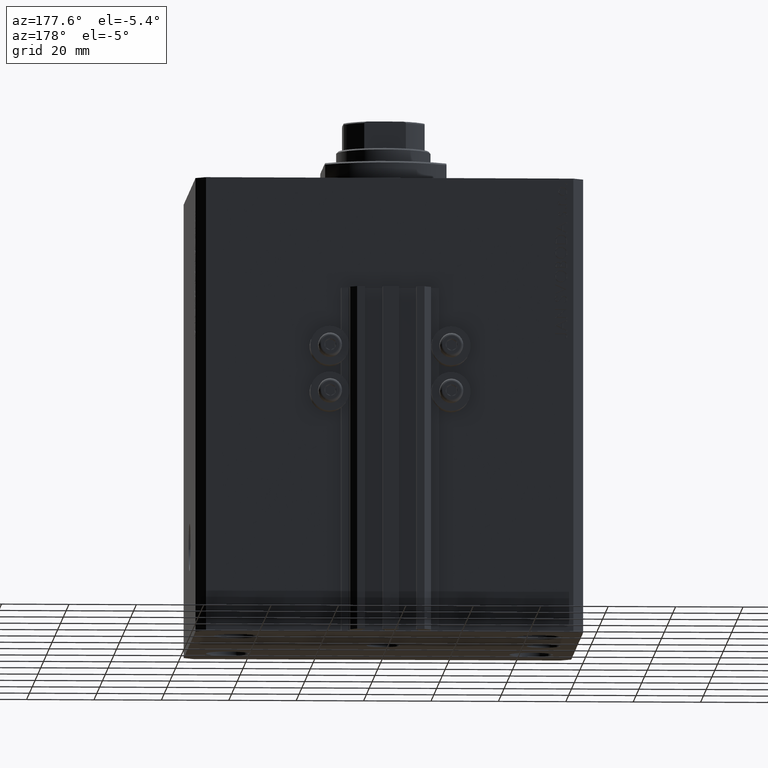
[diagram: clean part render]
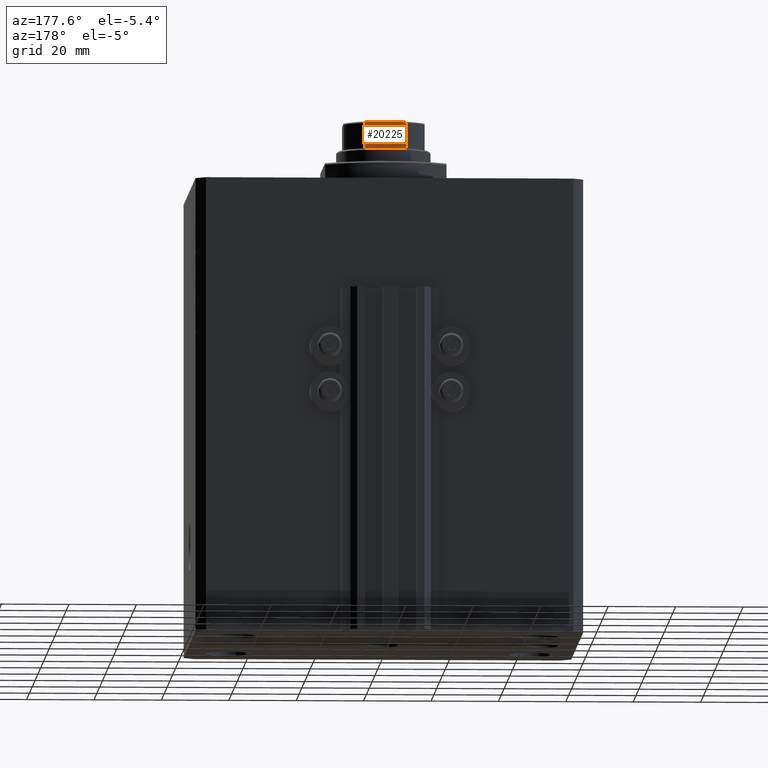
[diagram: same view with one face highlighted and labeled with its STEP entity id]
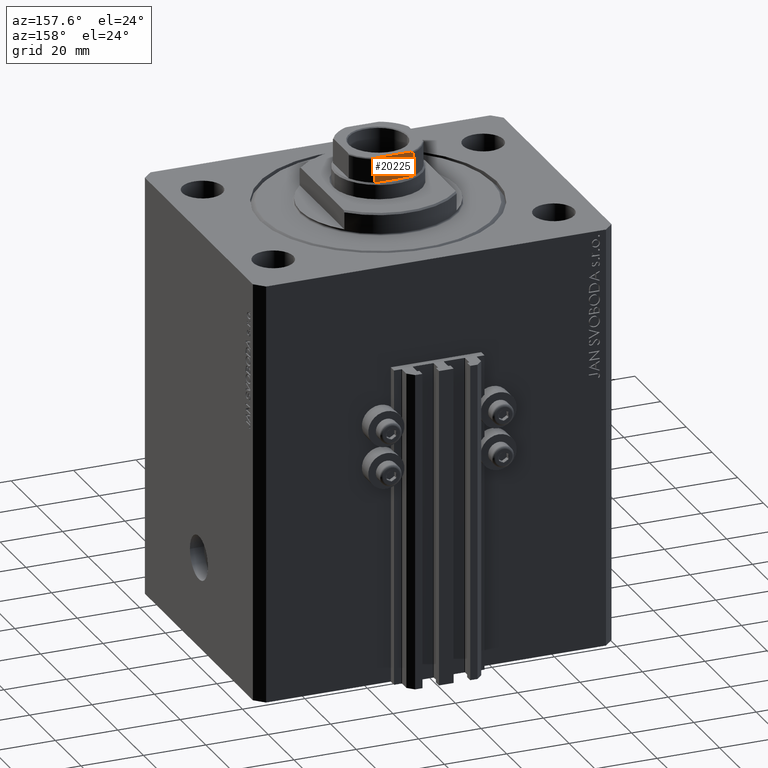
[diagram: same view with one face highlighted and labeled with its STEP entity id]
A machine part, auxiliary view. The second image highlights one B-rep face of the part: STEP entity #20225.
A second angle (auxiliary view) of the same face is appended — the face is thin or edge-on in the first view.
In plain terms, the highlighted planar face has unit normal (0, -1, 0).
Its self-contained STEP definition (entity closure, byte-faithful):
#2857 = DIRECTION ( 'NONE',  ( -1.000000000000000000, -7.228014483236695816E-17, -0.000000000000000000 ) ) ;
#3470 = EDGE_CURVE ( 'NONE', #31423, #36230, #40232, .T. ) ;
#3572 = DIRECTION ( 'NONE',  ( -1.000000000000000000, -7.228014483236695816E-17, -0.000000000000000000 ) ) ;
#3825 = CARTESIAN_POINT ( 'NONE',  ( 6.091027642353958882, 12.00000000000000178, 136.7080088155617261 ) ) ;
#4317 = CARTESIAN_POINT ( 'NONE',  ( 5.230809753656822991, 12.00000000000000000, 137.0000000000000000 ) ) ;
#4701 = VECTOR ( 'NONE', #32716, 1000.000000000000000 ) ;
#5080 = CARTESIAN_POINT ( 'NONE',  ( -6.184658438426494875, 12.00000000000000000, 129.0000000000000000 ) ) ;
#5624 = CARTESIAN_POINT ( 'NONE',  ( -5.230795946637844196, 11.99999999999999467, 136.9999999999999716 ) ) ;
#5988 = CARTESIAN_POINT ( 'NONE',  ( -11.99999999999999822, 11.99999999999999822, 137.0000000000000000 ) ) ;
#7090 = VERTEX_POINT ( 'NONE', #9625 ) ;
#7188 = CARTESIAN_POINT ( 'NONE',  ( -11.99999999999999822, 11.99999999999999822, 129.0000000000000000 ) ) ;
#7437 = EDGE_CURVE ( 'NONE', #21266, #37041, #25527, .T. ) ;
#7542 = DIRECTION ( 'NONE',  ( -0.000000000000000000, -0.000000000000000000, 1.000000000000000000 ) ) ;
#7784 = LINE ( 'NONE', #12076, #41423 ) ;
#9625 = CARTESIAN_POINT ( 'NONE',  ( 6.184658438426492211, 12.00000000000000178, 129.0000000000000000 ) ) ;
#9968 = ORIENTED_EDGE ( 'NONE', *, *, #11707, .F. ) ;
#11160 = VECTOR ( 'NONE', #2857, 1000.000000000000000 ) ;
#11188 = CARTESIAN_POINT ( 'NONE',  ( -6.184658438426490434, 12.00000000000000000, -0.001000000000001000089 ) ) ;
#11257 = LINE ( 'NONE', #7188, #34576 ) ;
#11505 = CARTESIAN_POINT ( 'NONE',  ( 5.459934723612540175, 12.00000000000000000, 136.9794964115812377 ) ) ;
#11707 = EDGE_CURVE ( 'NONE', #7090, #36230, #7784, .T. ) ;
#12076 = CARTESIAN_POINT ( 'NONE',  ( 6.184658438426490434, 11.99999999999999822, -0.001000000000001000089 ) ) ;
#14228 = CARTESIAN_POINT ( 'NONE',  ( 5.000000000000002665, 12.00000000000000000, 137.0000000000000000 ) ) ;
#15105 = B_SPLINE_CURVE_WITH_KNOTS ( 'NONE', 3,
 ( #26913, #38416, #20235, #16421, #35044, #27384, #41995, #16658, #5624, #31224 ),
 .UNSPECIFIED., .F., .F.,
 ( 4, 2, 2, 2, 4 ),
 ( 0.000000000000000000, 0.0001740189231935554155, 0.0003480378463871108309, 0.0006960756927741755832, 0.001392151385548328398 ),
 .UNSPECIFIED. ) ;
#15440 = ORIENTED_EDGE ( 'NONE', *, *, #35166, .T. ) ;
#15989 = CARTESIAN_POINT ( 'NONE',  ( -5.000000000000001776, 11.99999999999999822, 137.0000000000000000 ) ) ;
#16421 = CARTESIAN_POINT ( 'NONE',  ( -6.091003570118824761, 11.99999999999999822, 136.7080862465981284 ) ) ;
#16658 = CARTESIAN_POINT ( 'NONE',  ( -5.458892612163326774, 11.99999999999999822, 136.9796099716498077 ) ) ;
#17846 = VERTEX_POINT ( 'NONE', #15989 ) ;
#18463 = CARTESIAN_POINT ( 'NONE',  ( 6.184658438426490434, 11.99999999999999822, 136.5000000000000000 ) ) ;
#19199 = EDGE_CURVE ( 'NONE', #37041, #17846, #15105, .T. ) ;
#20225 = ADVANCED_FACE ( 'NONE', ( #32113 ), #42892, .F. ) ;
#20235 = CARTESIAN_POINT ( 'NONE',  ( -6.161088279078727581, 11.99999999999999822, 136.6146234191509734 ) ) ;
#21266 = VERTEX_POINT ( 'NONE', #5080 ) ;
#21597 = DIRECTION ( 'NONE',  ( 1.000000000000000000, 7.228014483236695816E-17, 0.000000000000000000 ) ) ;
#22046 = CARTESIAN_POINT ( 'NONE',  ( 5.793822051191360067, 12.00000000000000355, 136.8841735219943700 ) ) ;
#24945 = CARTESIAN_POINT ( 'NONE',  ( -11.99999999999999822, 11.99999999999999822, 137.0000000000000000 ) ) ;
#25527 = LINE ( 'NONE', #11188, #4701 ) ;
#26913 = CARTESIAN_POINT ( 'NONE',  ( -6.184658438426490434, 12.00000000000000000, 136.5000000000000000 ) ) ;
#27384 = CARTESIAN_POINT ( 'NONE',  ( -5.900889097622411761, 12.00000000000000000, 136.8429613869932666 ) ) ;
#28704 = CARTESIAN_POINT ( 'NONE',  ( -6.184658438426490434, 12.00000000000000000, 136.5000000000000000 ) ) ;
#28967 = CARTESIAN_POINT ( 'NONE',  ( 6.184658438426492211, 11.99999999999999467, 136.5589821493407214 ) ) ;
#29456 = CARTESIAN_POINT ( 'NONE',  ( 6.045866546018590526, 12.00000000000000178, 136.7461068616299542 ) ) ;
#29886 = ORIENTED_EDGE ( 'NONE', *, *, #19199, .T. ) ;
#30813 = ORIENTED_EDGE ( 'NONE', *, *, #3470, .T. ) ;
#31224 = CARTESIAN_POINT ( 'NONE',  ( -5.000000000000001776, 11.99999999999999822, 137.0000000000000000 ) ) ;
#31423 = VERTEX_POINT ( 'NONE', #14228 ) ;
#32113 = FACE_OUTER_BOUND ( 'NONE', #33031, .T. ) ;
#32716 = DIRECTION ( 'NONE',  ( -0.000000000000000000, -0.000000000000000000, 1.000000000000000000 ) ) ;
#33031 = EDGE_LOOP ( 'NONE', ( #33653, #30813, #9968, #15440, #41566, #29886 ) ) ;
#33653 = ORIENTED_EDGE ( 'NONE', *, *, #47179, .F. ) ;
#34576 = VECTOR ( 'NONE', #3572, 1000.000000000000000 ) ;
#35044 = CARTESIAN_POINT ( 'NONE',  ( -6.046414714222235531, 12.00000000000000000, 136.7457872300293502 ) ) ;
#35166 = EDGE_CURVE ( 'NONE', #7090, #21266, #11257, .T. ) ;
#35966 = CARTESIAN_POINT ( 'NONE',  ( 6.184658438426490434, 11.99999999999999822, 136.5000000000000000 ) ) ;
#36230 = VERTEX_POINT ( 'NONE', #35966 ) ;
#36626 = CARTESIAN_POINT ( 'NONE',  ( 5.903192932991098374, 12.00000000000000355, 136.8415152347680532 ) ) ;
#36872 = CARTESIAN_POINT ( 'NONE',  ( 5.000000000000002665, 12.00000000000000000, 137.0000000000000000 ) ) ;
#37041 = VERTEX_POINT ( 'NONE', #28704 ) ;
#38416 = CARTESIAN_POINT ( 'NONE',  ( -6.184658438426488658, 12.00000000000000000, 136.5589344020394265 ) ) ;
#38770 = LINE ( 'NONE', #5988, #11160 ) ;
#39746 = CARTESIAN_POINT ( 'NONE',  ( 6.160856115322536297, 11.99999999999999645, 136.6149782197478828 ) ) ;
#40232 = B_SPLINE_CURVE_WITH_KNOTS ( 'NONE', 3,
 ( #36872, #4317, #11505, #22046, #36626, #29456, #3825, #39746, #28967, #18463 ),
 .UNSPECIFIED., .F., .F.,
 ( 4, 2, 2, 2, 4 ),
 ( 1.734723475976807094E-18, 0.0006877128613558363118, 0.001031569292033764768, 0.001203497507372728020, 0.001375425722711691272 ),
 .UNSPECIFIED. ) ;
#41423 = VECTOR ( 'NONE', #7542, 1000.000000000000000 ) ;
#41566 = ORIENTED_EDGE ( 'NONE', *, *, #7437, .T. ) ;
#41995 = CARTESIAN_POINT ( 'NONE',  ( -5.792513940493511981, 11.99999999999999822, 136.8846382036010141 ) ) ;
#42892 = PLANE ( 'NONE',  #47038 ) ;
#43131 = DIRECTION ( 'NONE',  ( 7.228014483236695816E-17, -1.000000000000000000, 0.000000000000000000 ) ) ;
#47038 = AXIS2_PLACEMENT_3D ( 'NONE', #24945, #43131, #21597 ) ;
#47179 = EDGE_CURVE ( 'NONE', #31423, #17846, #38770, .T. ) ;